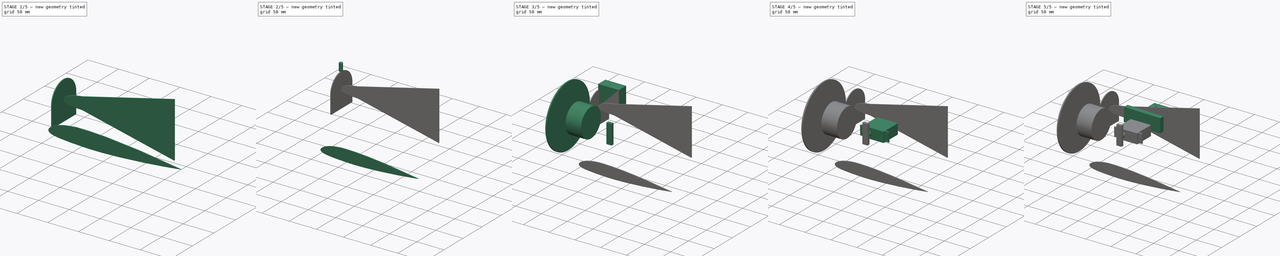
[diagram: build sequence overview — one tinted view per stage of 5, left to right]
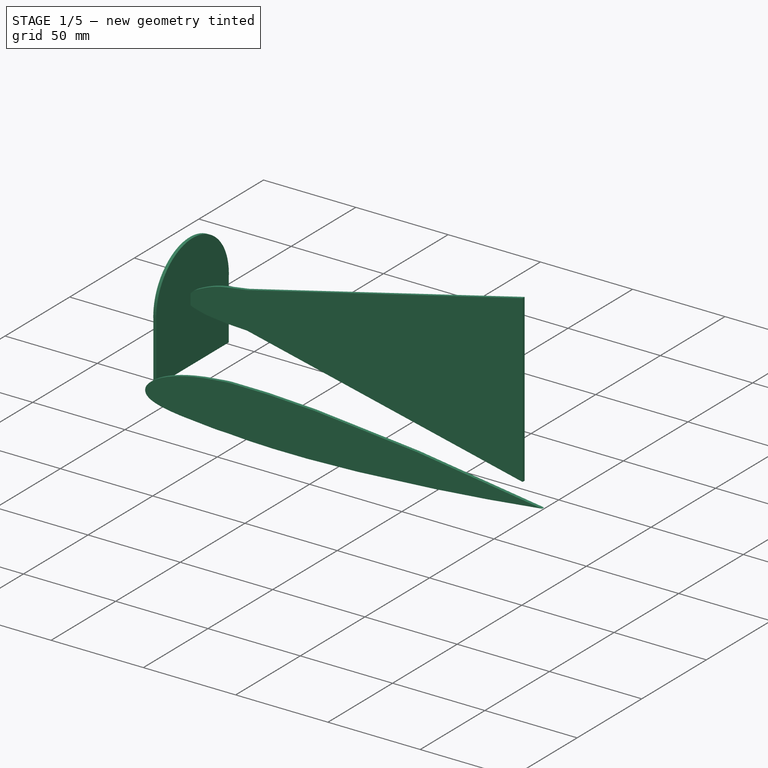
[diagram: stage 1 of 5 — iso view after this stage's code; geometry added in this stage tinted green]
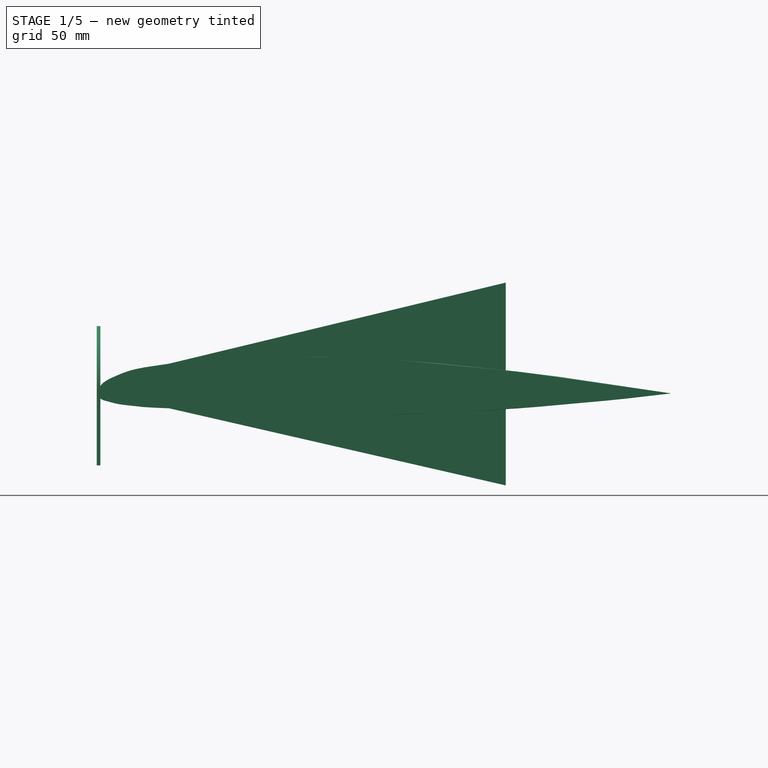
[diagram: stage 1 of 5 — front view after this stage's code; geometry added in this stage tinted green]
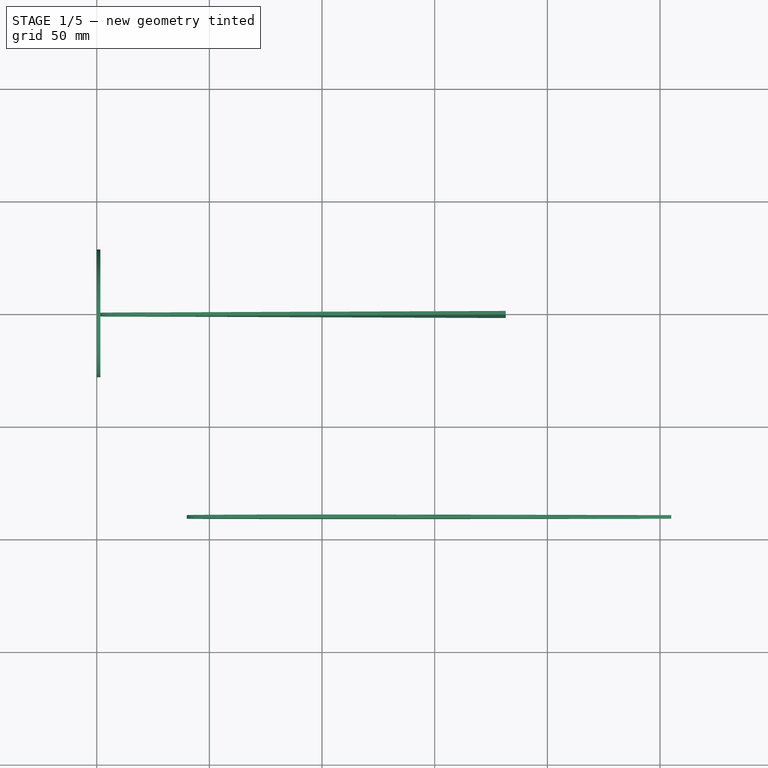
[diagram: stage 1 of 5 — top view after this stage's code; geometry added in this stage tinted green]
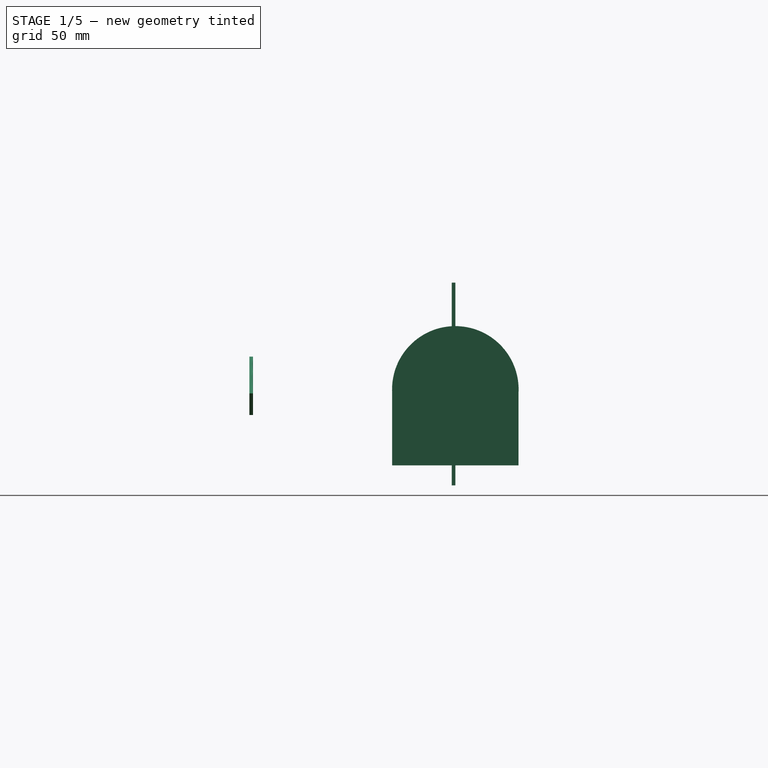
[diagram: stage 1 of 5 — right view after this stage's code; geometry added in this stage tinted green]
FCSTD DOCUMENT  (FreeCAD 0.21R33694 (Git))
Label: builtoutwing
License: All rights reserved
LicenseURL: http://en.wikipedia.org/wiki/All_rights_reserved
objects: Part::Box×7, Part::FeaturePython×6, Part::Cylinder×4, Part::MultiFuse×4, Sketcher::SketchObject×4, PartDesign::Body×4, Part::Fuse×2, PartDesign::Pad×2, Spreadsheet::Sheet×1
note: 35 computed .brp shape members not serialized (recipe doc carries the construction recipe); baked Part::Feature solids carry a one-line shape summary decoded from their .brp

FEATURE [Part::FeaturePython] wrib  # WARN: FeaturePython — macro-defined, semantics opaque (R4)
  Chord = 250
  Coordinates = (101) [(1,0,-1.66492e-17),(0.99901,0,0.000165389),(0.996045,0,0.000659808),(0.991115,0,0.00147806),(0.984241,0,0.00261162),(0.97545,0,0.00404888),+95 more]
  NacaNbrPoint = 50
  NacaProfil = 24112
  RibProfil = 24112
  Thickness = 1.6
  finite_TE = false
  splitSpline = true
  useSpline = true
  wingkey = 0
FEATURE [Part::FeaturePython] wrib001  # WARN: FeaturePython — macro-defined, semantics opaque (R4)
  Chord = 225
  Coordinates = (101) [(1,0,-1.66492e-17),(0.99901,0,0.000165389),(0.996045,0,0.000659808),(0.991115,0,0.00147806),(0.984241,0,0.00261162),(0.97545,0,0.00404888),+95 more]
  NacaNbrPoint = 50
  NacaProfil = 24112
  Placement = pos=(20,-35,0) rot=(1,0,0;0rad)
  RibProfil = 24112
  Thickness = 1.6
  finite_TE = false
  splitSpline = true
  useSpline = true
  wingkey = 0
  expr: .Placement.Base.x = Spreadsheet.wingStepBack
  expr: .Placement.Base.y = wrib.Placement.Base.y - Spreadsheet.wingSpacing * 1 mm
FEATURE [Part::FeaturePython] wrib002  # WARN: FeaturePython — macro-defined, semantics opaque (R4)
  Chord = 215
  Coordinates = (101) [(1,0,-1.66492e-17),(0.99901,0,0.000165389),(0.996045,0,0.000659808),(0.991115,0,0.00147806),(0.984241,0,0.00261162),(0.97545,0,0.00404888),+95 more]
  NacaNbrPoint = 50
  NacaProfil = 24112
  Placement = pos=(40,-91.4,0) rot=(1,0,0;0rad)
  RibProfil = 24112
  Thickness = 1.6
  finite_TE = false
  splitSpline = true
  useSpline = true
  wingkey = 0
  expr: .Placement.Base.x = Spreadsheet.wingStepBack * 2
  expr: .Placement.Base.y = wrib001.Placement.Base.y - 1.2 mm * Spreadsheet.maxServoThickness
FEATURE [Sketcher::SketchObject] Sketch
  FullyConstrained = false
  MapMode = 5
  Placement = pos=(0,0,0) rot=(1,0,0;1.5708rad)
  Support = -> [XZ_Plane]
  sketch-geometry (35):
    g0: LineSegment StartX=181.519 StartY=49.1701 StartZ=0 EndX=181.519 EndY=-40.8299 EndZ=0
    g1: LineSegment StartX=181.519 StartY=49.1701 StartZ=0 EndX=32.1616 EndY=13.2022 EndZ=0
    g2: LineSegment StartX=181.519 StartY=-40.8299 StartZ=0 EndX=32.1616 EndY=-6.62238 EndZ=0
    g3: LineSegment StartX=32.1616 StartY=13.2022 StartZ=0 EndX=32.1616 EndY=-6.62238 EndZ=0
    g4-g19: Circle x16 (B-spline internal-alignment scaffolding for g20; pole/knot coordinates omitted)
    g20: BSplineCurve PolesCount=16 KnotsCount=14 Degree=3 IsPeriodic=0
    g21-g34: GeomPoint x14 (B-spline internal-alignment scaffolding for g20; pole/knot coordinates omitted)
  constraints (17):
    c: Vertical(g0)
    c: DistanceY(g0,g0) = 90
    c: Coincident(g1,g0)
    c: Coincident(g2,g0)
    c: Coincident(g3,g1)
    c: Coincident(g3,g2)
    c: Vertical(g3)
    c: Angle(g0,g2) = 1.34565
    c: Angle(g1,g0) = 1.33448
    c: Weight(g4) = 1
    c: Coincident(g20,g1)
    c: Equal(g4, g5-g10) x6
    c: Coincident(g10,g-1)
    c: Equal(g4, g11-g19) x9
    c: Coincident(g20,g2)
    c: InternalAlignment(g4-g19 -> g20) x16
    c: InternalAlignment(g21-g34 -> g20) x14
FEATURE [Spreadsheet::Sheet] Spreadsheet
  cells = A1='wingStepBack; B1(wingStepBack)=20; A2='maxServoThickness; B2(maxServoThickness)=47; A3='wingSpacing; B3(wingSpacing)=35; B4==70 / 4
FEATURE [PartDesign::Pad] Pad
  Direction = (0,-1,2e-16)
  Length = 1.6
  Length2 = 10
  Placement = pos=(0,0,0) rot=(1,0,0;1.5708rad)
  Profile = -> Sketch
  ReferenceAxis = -> Sketch [N_Axis]
  Type = 0
FEATURE [PartDesign::Body] Body  label="wingtip"
  Group = -> [Sketch,Pad]
  Origin = -> Origin
  Placement = pos=(100,-198,0) rot=(0,0,1;0rad)
  Tip = -> Pad
  expr: .Placement.Base.x = wrib005.Placement.Base.x
  expr: .Placement.Base.y = wrib005.Placement.Base.y - wrib005.Thickness
FEATURE [Sketcher::SketchObject] Sketch001
  FullyConstrained = false
  MapMode = 5
  Placement = pos=(0,0,0) rot=(0.57735,0.57735,0.57735;2.0944rad)
  Support = -> [YZ_Plane001]
  sketch-geometry (5):
    g0: LineSegment StartX=28.0369 StartY=-31.9392 StartZ=0 EndX=-28.0275 EndY=-31.9392 EndZ=0
    g1: GeomPoint X=28.0369 Y=0.154968 Z=0
    g2: LineSegment StartX=-28.0275 StartY=6.31e-14 StartZ=0 EndX=-28.0275 EndY=-31.9392 EndZ=0
    g3: LineSegment StartX=28.0369 StartY=0.154968 StartZ=0 EndX=28.0369 EndY=-31.9392 EndZ=0
    g4: ArcOfCircle CenterX=0 CenterY=1.77516 CenterZ=0 NormalX=0 NormalY=0 NormalZ=1 AngleXU=0 Radius=28.0837 StartAngle=6.22546 EndAngle=9.48803
  constraints (10):
    c: Horizontal(g0)
    c: PointOnObject(g2,g-1)
    c: Coincident(g2,g0)
    c: Vertical(g2)
    c: Coincident(g3,g1)
    c: Coincident(g3,g0)
    c: Vertical(g3)
    c: PointOnObject(g4,g-2)
    c: Coincident(g4,g2)
    c: Coincident(g4,g3)
FEATURE [PartDesign::Pad] Pad001
  Direction = (1,-2e-16,3e-16)
  Length = 1.6
  Length2 = 10
  Placement = pos=(0,0,0) rot=(1,1,1;2.0944rad)
  Profile = -> Sketch001
  ReferenceAxis = -> Sketch001 [N_Axis]
  Type = 0
FEATURE [PartDesign::Body] Body001  label="motor suppprt up"
  Group = -> [Sketch001,Pad001]
  Origin = -> Origin001
  Placement = pos=(80.7,-134.7,43.3) rot=(0,0,1;0rad)
  Tip = -> Pad001
FEATURE [Sketcher::SketchObject] Sketch002
  FullyConstrained = false
  MapMode = 5
  Placement = pos=(0,0,0) rot=(1,0,0;1.5708rad)
  Support = -> [XZ_Plane002]
  sketch-geometry (4):
    g0: LineSegment StartX=83.1645 StartY=12.579 StartZ=0 EndX=83.1645 EndY=48.2086 EndZ=0
    g1: LineSegment StartX=83.1645 StartY=48.2086 StartZ=0 EndX=83.1645 EndY=12.579 EndZ=0
    g2: LineSegment StartX=83.1645 StartY=12.579 StartZ=0 EndX=184.931 EndY=10.3329 EndZ=0
    g3: LineSegment StartX=184.931 StartY=10.3329 StartZ=0 EndX=83.1645 EndY=48.2086 EndZ=0
  constraints (6):
    c: Vertical(g0)
    c: Coincident(g1,g0)
    c: Coincident(g2,g3)
    c: Coincident(g0,g1)
    c: Coincident(g0,g2)
    c: Coincident(g0,g3)
FEATURE [PartDesign::Body] Body002  label="Body"
  Group = -> [Sketch002]
  Origin = -> Origin002
  Placement = pos=(0,-125,0) rot=(0,0,1;0rad)
FEATURE [Sketcher::SketchObject] Sketch003
  FullyConstrained = false
  MapMode = 5
  Placement = pos=(0,0,0) rot=(1,0,0;1.5708rad)
  Support = -> [XZ_Plane003]
  sketch-geometry (29):
    g0: LineSegment StartX=83.9824 StartY=48.0338 StartZ=0 EndX=83.9824 EndY=11.8671 EndZ=0
    g1: LineSegment StartX=183.735 StartY=11.8671 StartZ=0 EndX=83.9824 EndY=48.0338 EndZ=0
    g2: LineSegment StartX=83.9824 StartY=11.8671 StartZ=0 EndX=100.826 EndY=11.8671 EndZ=0
    g3-g15: Circle x13 (B-spline internal-alignment scaffolding for g16; pole/knot coordinates omitted)
    g16: BSplineCurve PolesCount=13 KnotsCount=11 Degree=3 IsPeriodic=0
    g17-g27: GeomPoint x11 (B-spline internal-alignment scaffolding for g16; pole/knot coordinates omitted)
    g28: LineSegment StartX=177.945 StartY=11.8671 StartZ=0 EndX=183.735 EndY=11.8671 EndZ=0
  constraints (12):
    c: Coincident(g1,g0)
    c: Vertical(g0)
    c: Coincident(g2,g0)
    c: Coincident(g28,g1)
    c: Horizontal(g2)
    c: Weight(g3) = 1
    c: PointOnObject(g16,g2)
    c: Equal(g3, g4-g15) x12
    c: InternalAlignment(g3-g15 -> g16) x13
    c: InternalAlignment(g17-g27 -> g16) x11
    c: Coincident(g2,g16)
    c: PointOnObject(g28,g16)
FEATURE [PartDesign::Body] Body003
  Group = -> [Sketch003]
  Origin = -> Origin003
  Placement = pos=(0,-162.2,0) rot=(0,0,1;0rad)
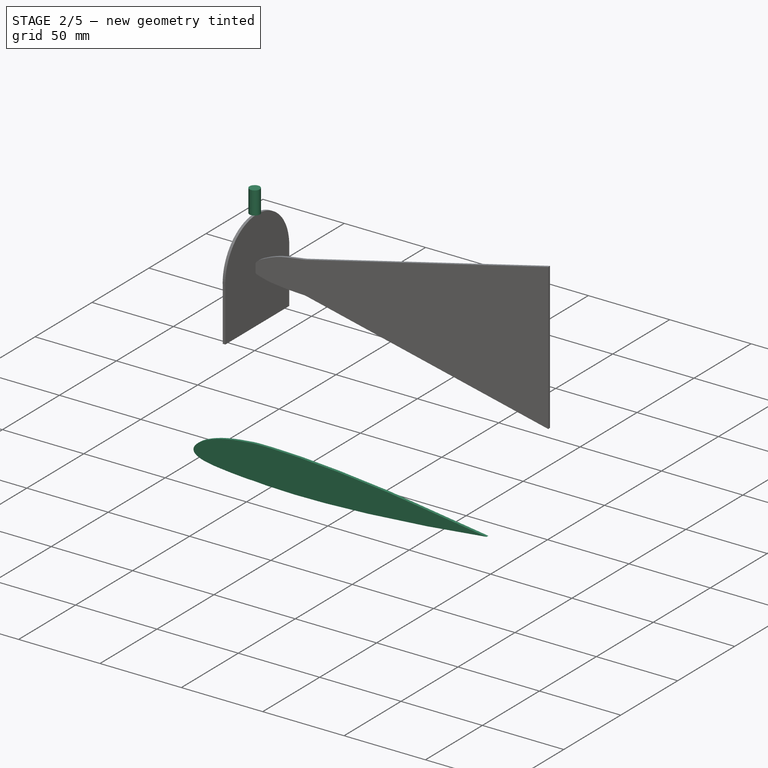
[diagram: stage 2 of 5 — iso view after this stage's code; geometry added in this stage tinted green]
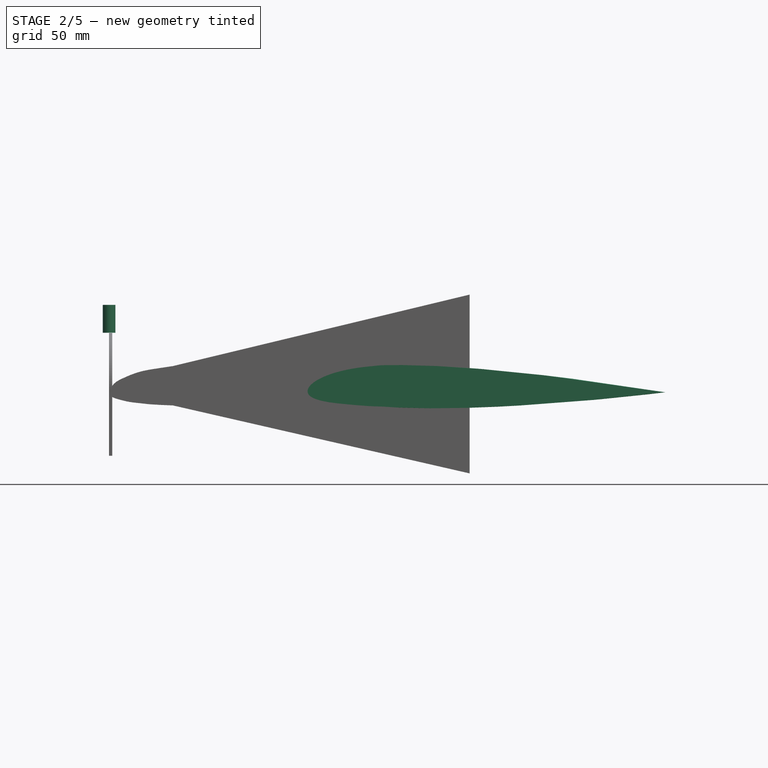
[diagram: stage 2 of 5 — front view after this stage's code; geometry added in this stage tinted green]
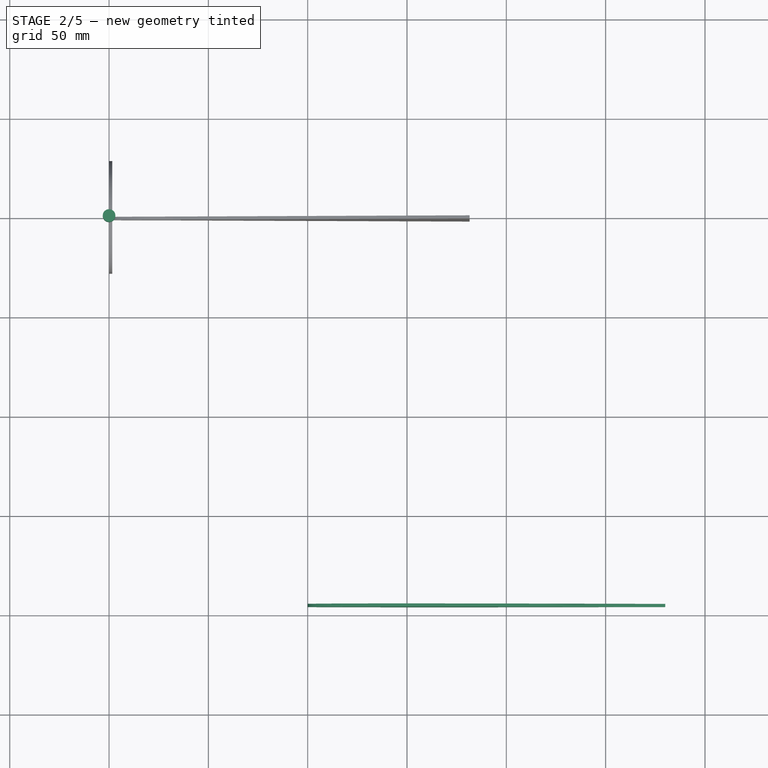
[diagram: stage 2 of 5 — top view after this stage's code; geometry added in this stage tinted green]
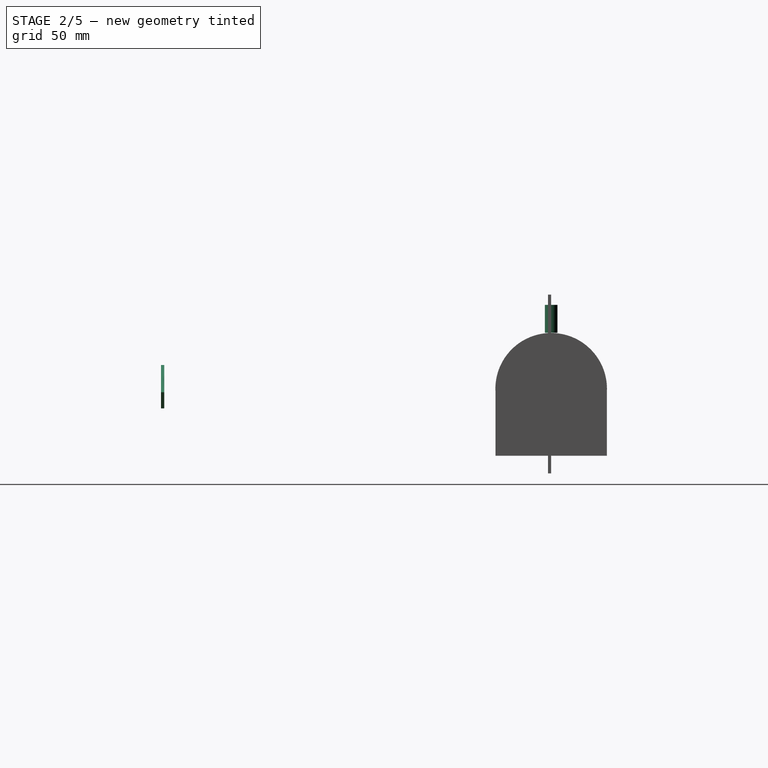
[diagram: stage 2 of 5 — right view after this stage's code; geometry added in this stage tinted green]
FEATURE [Part::Cylinder] Cylinder  label="Motor"
  Angle = 360
  AttacherType = Attacher::AttachEngine3D
  FirstAngle = 0
  Height = 30
  Radius = 27.7
  SecondAngle = 0
FEATURE [Part::Cylinder] Cylinder001  label="Cylinder"
  Angle = 360
  AttacherType = Attacher::AttachEngine3D
  FirstAngle = 0
  Height = 14
  MapMode = 5
  Placement = pos=(0,0,30) rot=(0,0,1;0rad)
  Radius = 3.175
  SecondAngle = 0
  Support = -> [Cylinder]
FEATURE [Part::FeaturePython] wrib003  # WARN: FeaturePython — macro-defined, semantics opaque (R4)
  Chord = 200
  Coordinates = (101) [(1,0,-1.66492e-17),(0.99901,0,0.000165389),(0.996045,0,0.000659808),(0.991115,0,0.00147806),(0.984241,0,0.00261162),(0.97545,0,0.00404888),+95 more]
  NacaNbrPoint = 50
  NacaProfil = 24112
  Placement = pos=(60,-126.4,0) rot=(1,0,0;0rad)
  RibProfil = 24112
  Thickness = 1.6
  finite_TE = false
  splitSpline = true
  useSpline = true
  wingkey = 0
  expr: .Placement.Base.x = Spreadsheet.wingStepBack * 3
  expr: .Placement.Base.y = wrib002.Placement.Base.y - Spreadsheet.wingSpacing * 1 mm
FEATURE [Part::FeaturePython] wrib004  # WARN: FeaturePython — macro-defined, semantics opaque (R4)
  Chord = 190
  Coordinates = (101) [(1,0,-1.66492e-17),(0.99901,0,0.000165389),(0.996045,0,0.000659808),(0.991115,0,0.00147806),(0.984241,0,0.00261162),(0.97545,0,0.00404888),+95 more]
  NacaNbrPoint = 50
  NacaProfil = 24112
  Placement = pos=(80,-161.4,0) rot=(1,0,0;0rad)
  RibProfil = 24112
  Thickness = 1.6
  finite_TE = false
  splitSpline = true
  useSpline = true
  wingkey = 0
  expr: .Placement.Base.x = Spreadsheet.wingStepBack * 4
  expr: .Placement.Base.y = wrib003.Placement.Base.y - 1 mm * Spreadsheet.wingSpacing
FEATURE [Part::FeaturePython] wrib005  # WARN: FeaturePython — macro-defined, semantics opaque (R4)
  Chord = 180
  Coordinates = (101) [(1,0,-1.66492e-17),(0.99901,0,0.000165389),(0.996045,0,0.000659808),(0.991115,0,0.00147806),(0.984241,0,0.00261162),(0.97545,0,0.00404888),+95 more]
  NacaNbrPoint = 50
  NacaProfil = 24112
  Placement = pos=(100,-196.4,0) rot=(1,0,0;0rad)
  RibProfil = 24112
  Thickness = 1.6
  finite_TE = false
  splitSpline = true
  useSpline = true
  wingkey = 0
  expr: .Placement.Base.x = Spreadsheet.wingStepBack * 5
  expr: .Placement.Base.y = wrib004.Placement.Base.y - 1 mm * Spreadsheet.wingSpacing
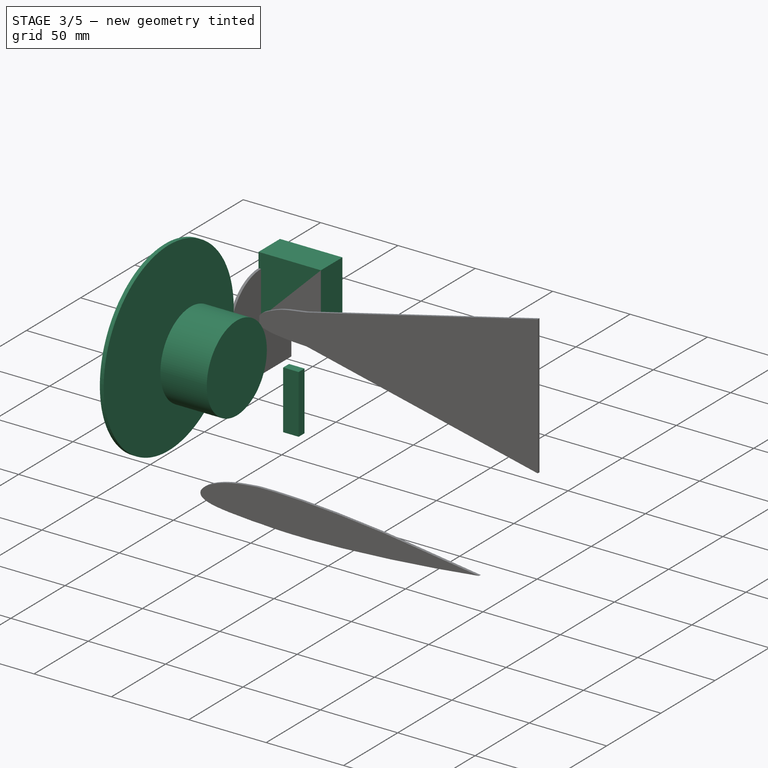
[diagram: stage 3 of 5 — iso view after this stage's code; geometry added in this stage tinted green]
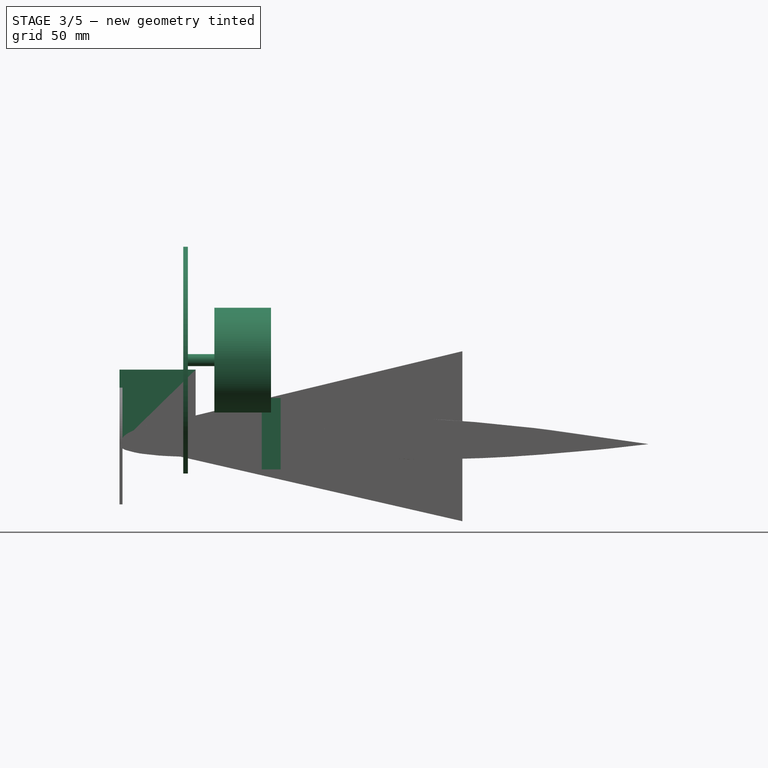
[diagram: stage 3 of 5 — front view after this stage's code; geometry added in this stage tinted green]
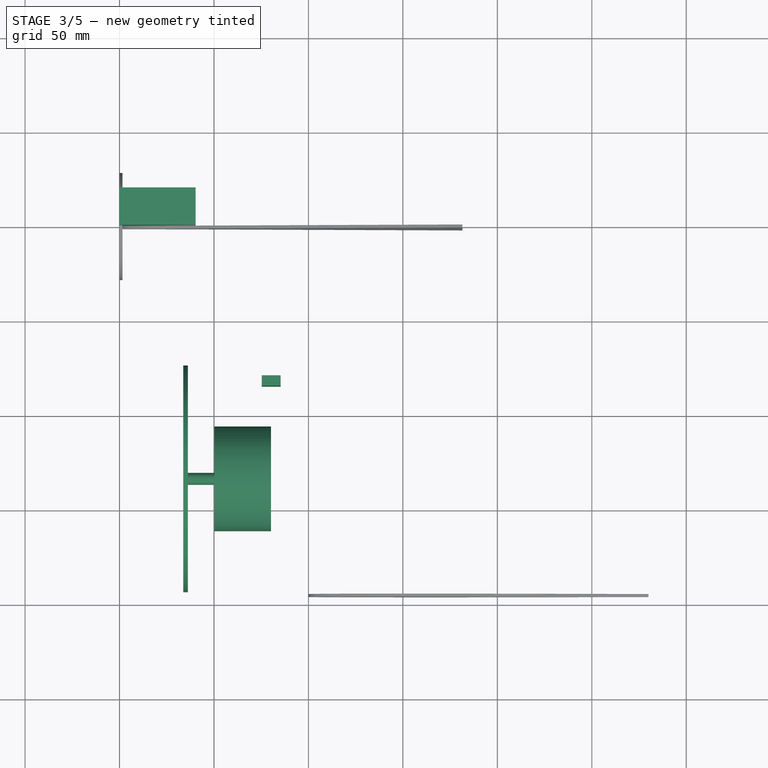
[diagram: stage 3 of 5 — top view after this stage's code; geometry added in this stage tinted green]
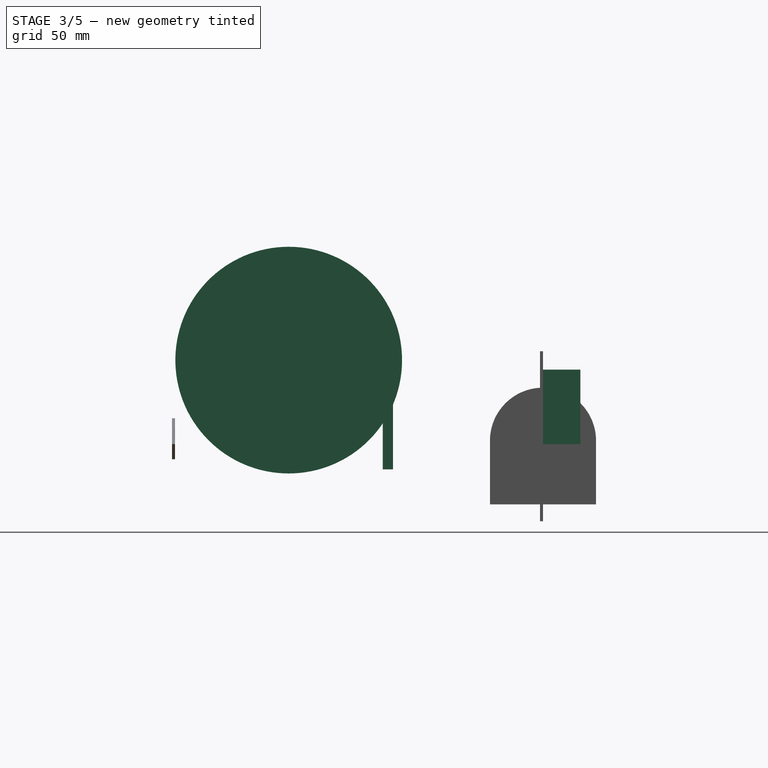
[diagram: stage 3 of 5 — right view after this stage's code; geometry added in this stage tinted green]
FEATURE [Part::Fuse] Fusion001  label="motor"
  Base = -> Cylinder
  Placement = pos=(88.4126,-158.1,45.5491) rot=(0,-1,0;1.5708rad)
  Tool = -> Cylinder001
FEATURE [Part::Box] Box003  label="Cube002"
  AttacherType = Attacher::AttachEngine3D
  Height = 39.4
  Length = 40.3
  Width = 19.8
FEATURE [Part::Box] Box006  label="Cube005"
  AttacherType = Attacher::AttachEngine3D
  Height = 5.4
  Length = 10
  Placement = pos=(75.3,-79.4,-13.4) rot=(1,0,0;1.5708rad)
  Width = 37.8
FEATURE [Part::Cylinder] Cylinder003
  Angle = 360
  AttacherType = Attacher::AttachEngine3D
  FirstAngle = 0
  Height = 2.5
  MapMode = 5
  Placement = pos=(44.4126,-158.1,45.5491) rot=(0,-1,0;1.5708rad)
  Radius = 60
  SecondAngle = 0
  Support = -> [Fusion001]
FEATURE [Part::MultiFuse] Fusion005  label="motor with prop"
  Placement = pos=(-8.2,23.5,-1.1) rot=(0,0,1;0rad)
  Shapes = -> [Cylinder003,Fusion001]
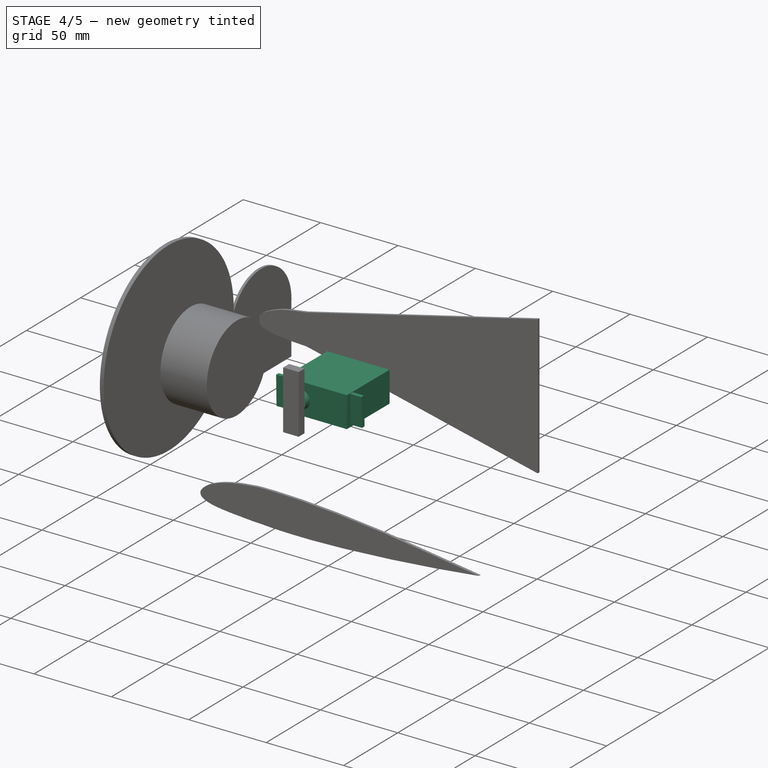
[diagram: stage 4 of 5 — iso view after this stage's code; geometry added in this stage tinted green]
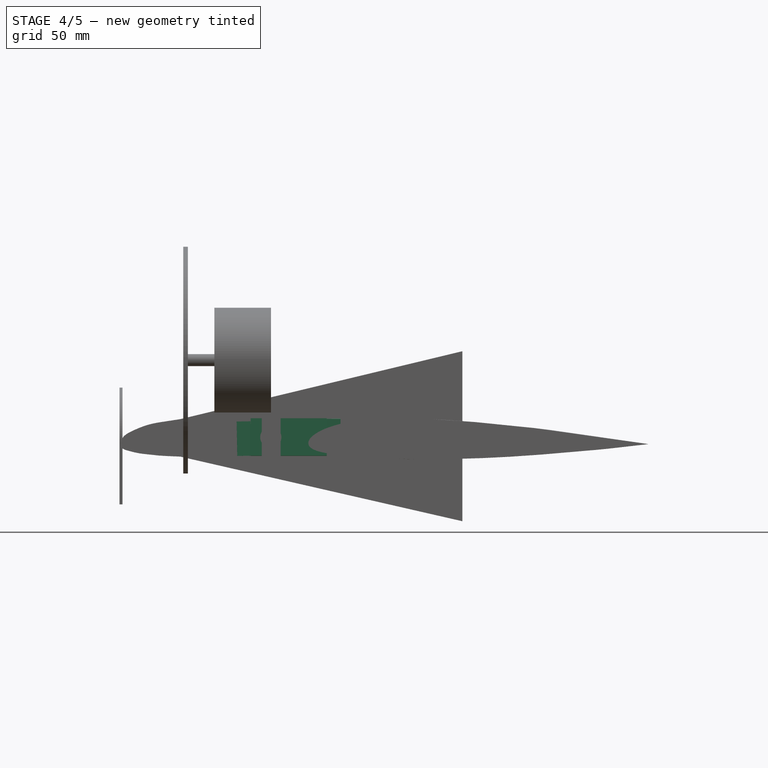
[diagram: stage 4 of 5 — front view after this stage's code; geometry added in this stage tinted green]
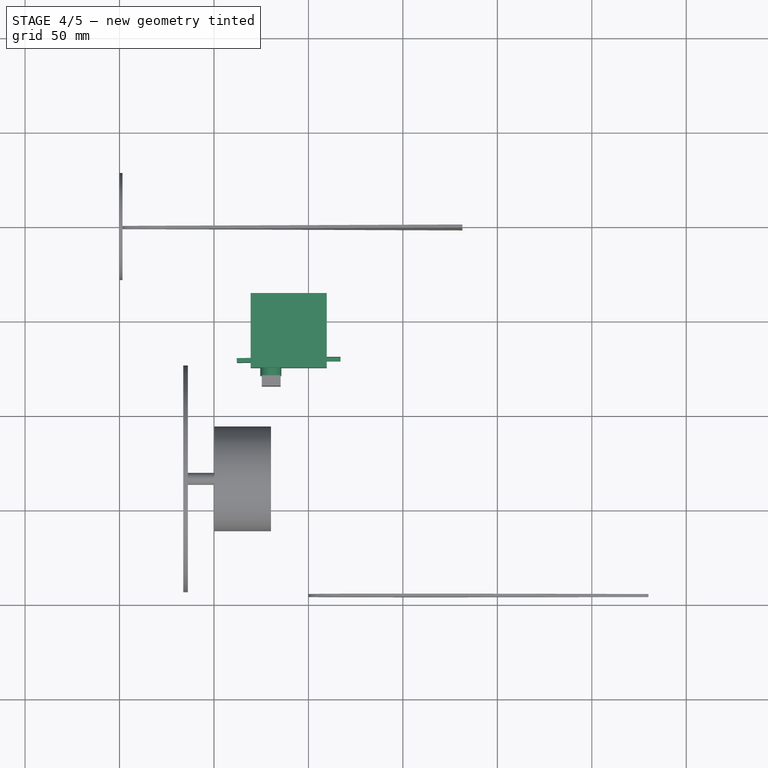
[diagram: stage 4 of 5 — top view after this stage's code; geometry added in this stage tinted green]
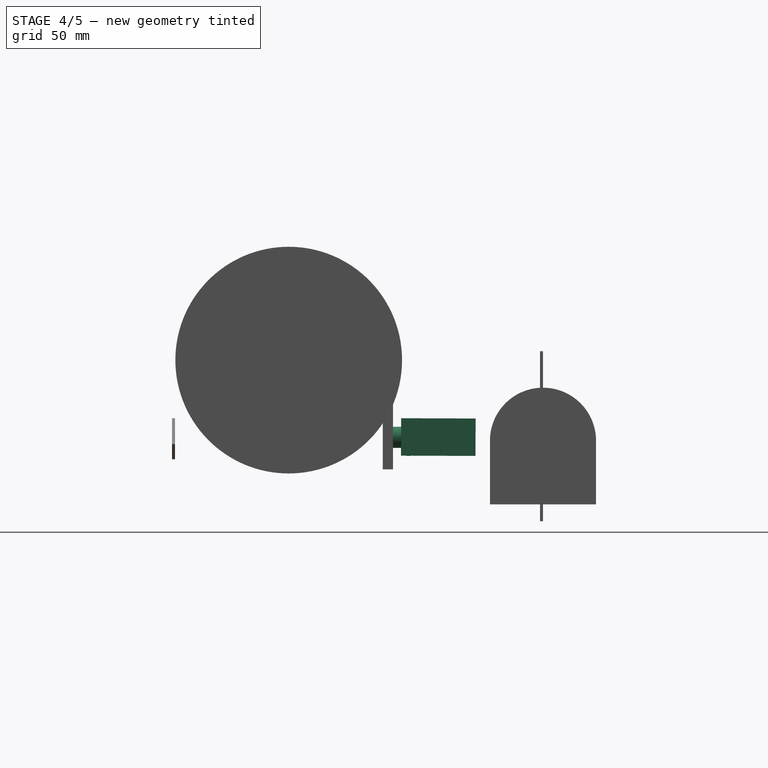
[diagram: stage 4 of 5 — right view after this stage's code; geometry added in this stage tinted green]
FEATURE [Part::Cylinder] Cylinder002
  Angle = 360
  AttacherType = Attacher::AttachEngine3D
  FirstAngle = 0
  Height = 4.4
  MapMode = 5
  Placement = pos=(0,0,39.4) rot=(0,0,1;0rad)
  Radius = 5.6
  SecondAngle = 0
  Support = -> [Box003]
FEATURE [Part::Box] Box004  label="Cube003"
  AttacherType = Attacher::AttachEngine3D
  Height = 2.3
  Length = 7.3
  MapMode = 5
  Placement = pos=(0,0,0) rot=(0.57735,-0.57735,-0.57735;2.0944rad)
  Support = -> [Box003]
  Width = 18.2
FEATURE [Part::Box] Box005  label="Cube004"
  AttacherType = Attacher::AttachEngine3D
  Height = 2.3
  Length = 7.3
  MapMode = 5
  Placement = pos=(40.3,0,0) rot=(0.57735,0.57735,0.57735;2.0944rad)
  Support = -> [Box003]
  Width = 18.2
FEATURE [Part::MultiFuse] Fusion002
  Shapes = -> [Box003,Cylinder002]
FEATURE [Part::MultiFuse] Fusion003  label="servo"
  Placement = pos=(69.3919,-35.7367,-6.25479) rot=(1,-6.4e-05,-0.000128;1.56715rad)
  Shapes = -> [Fusion002,Box005,Box004]
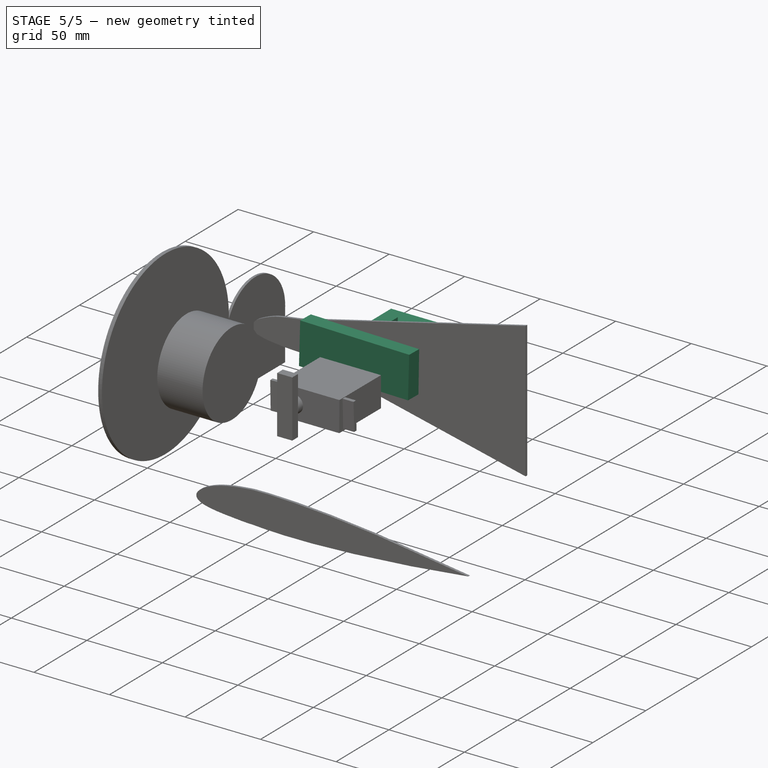
[diagram: stage 5 of 5 — iso view after this stage's code; geometry added in this stage tinted green]
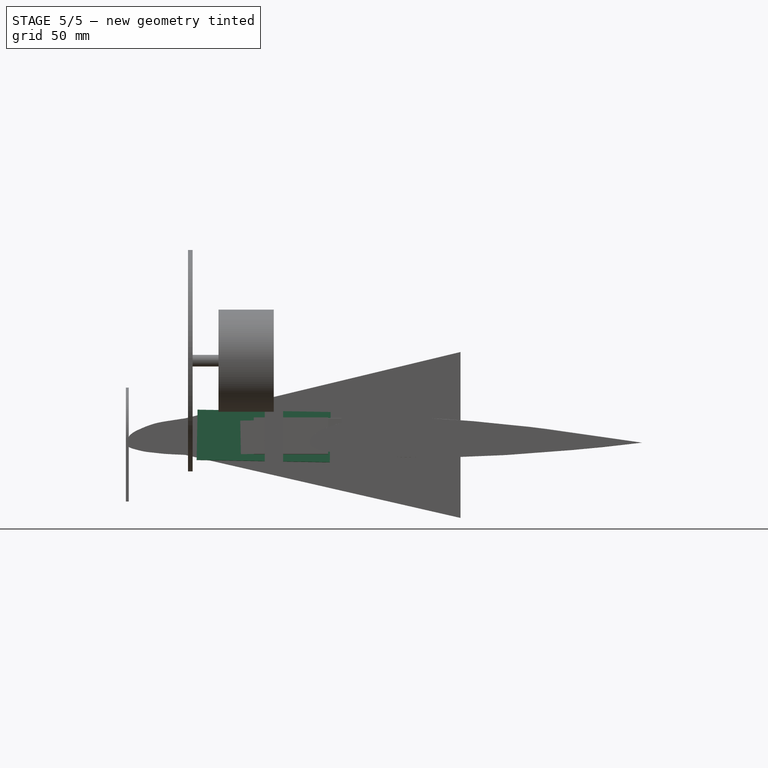
[diagram: stage 5 of 5 — front view after this stage's code; geometry added in this stage tinted green]
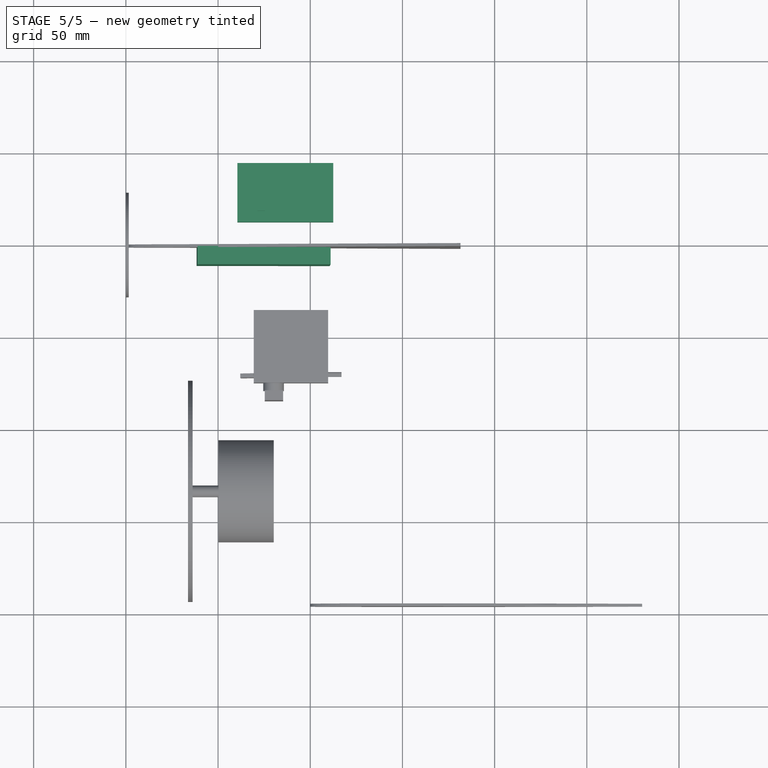
[diagram: stage 5 of 5 — top view after this stage's code; geometry added in this stage tinted green]
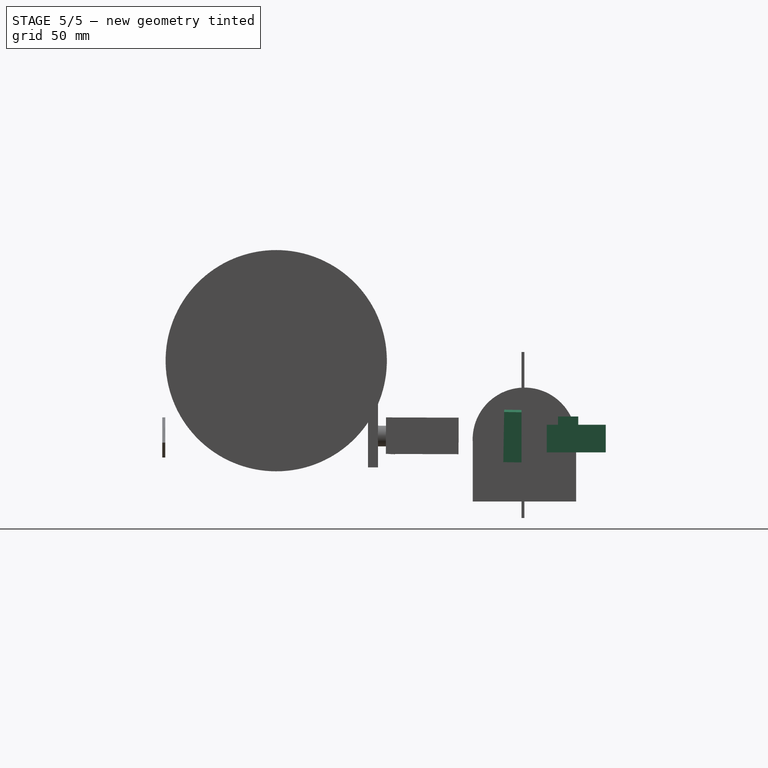
[diagram: stage 5 of 5 — right view after this stage's code; geometry added in this stage tinted green]
FEATURE [Part::Box] Box  label="Cube"
  AttacherType = Attacher::AttachEngine3D
  Height = 15
  Length = 52
  Width = 32
FEATURE [Part::Box] Box001  label="Cube001"
  AttacherType = Attacher::AttachEngine3D
  Height = 4.5
  Length = 4
  MapMode = 5
  Placement = pos=(0,0,15) rot=(0,0,1;0rad)
  Support = -> [Box]
  Width = 11
FEATURE [Part::Fuse] Fusion  label="flight controller"
  Base = -> Box
  Placement = pos=(60.5,12.1,-5.3) rot=(0,0,1;0rad)
  Tool = -> Box001
FEATURE [Part::Box] Box002  label="ESC"
  AttacherType = Attacher::AttachEngine3D
  Height = 10
  Length = 72.2
  Placement = pos=(38.4003,-1.4373,-9.47319) rot=(0.999922,0.008726,-0.00888;1.55342rad)
  Width = 27.2
FEATURE [Part::MultiFuse] Fusion004  label="servo001"
  Shapes = -> [Fusion003,Box006]
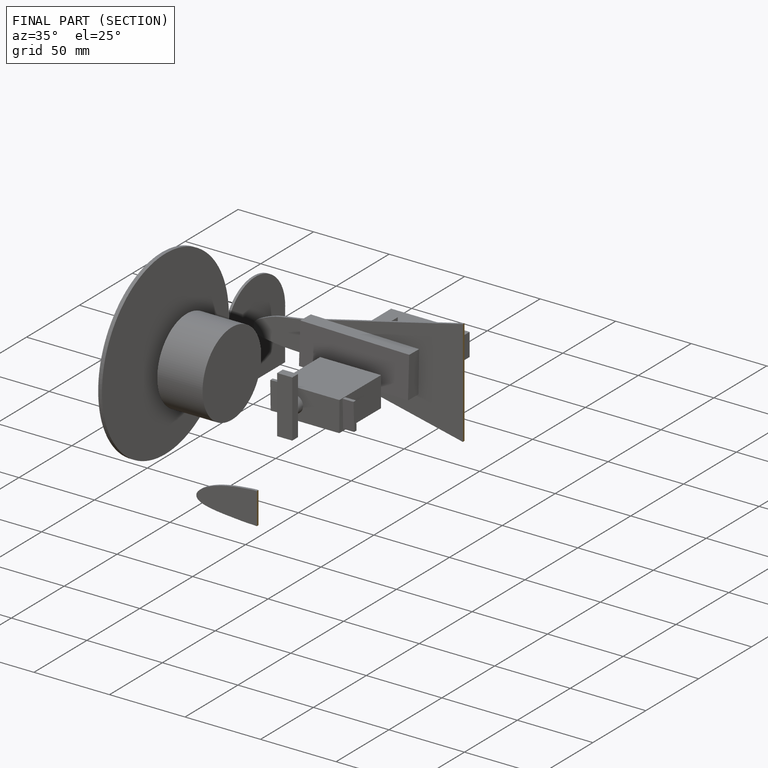
[diagram: finished part — half-section view (interior)]
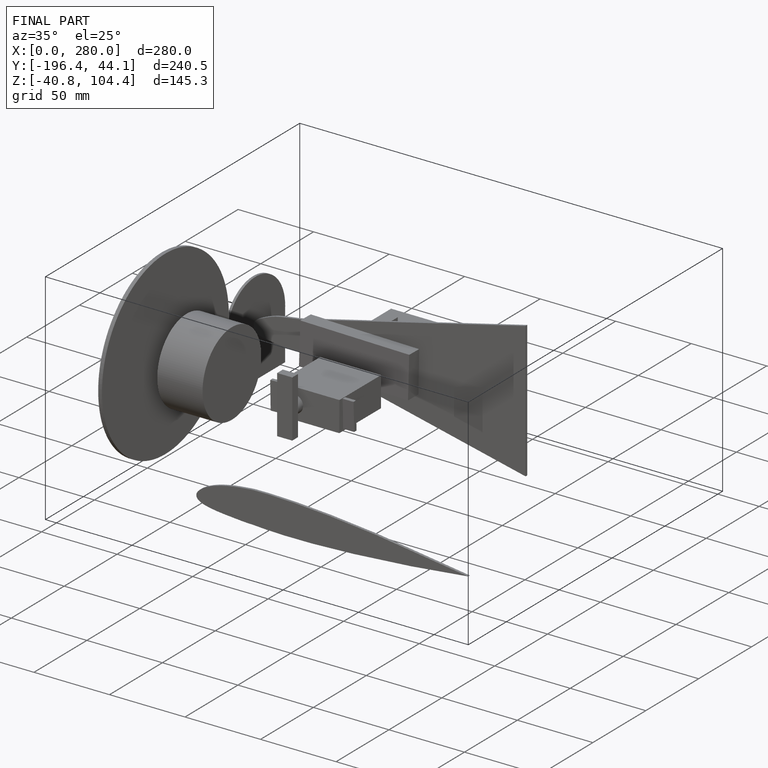
[diagram: finished part — iso view with bounding-box wireframe]
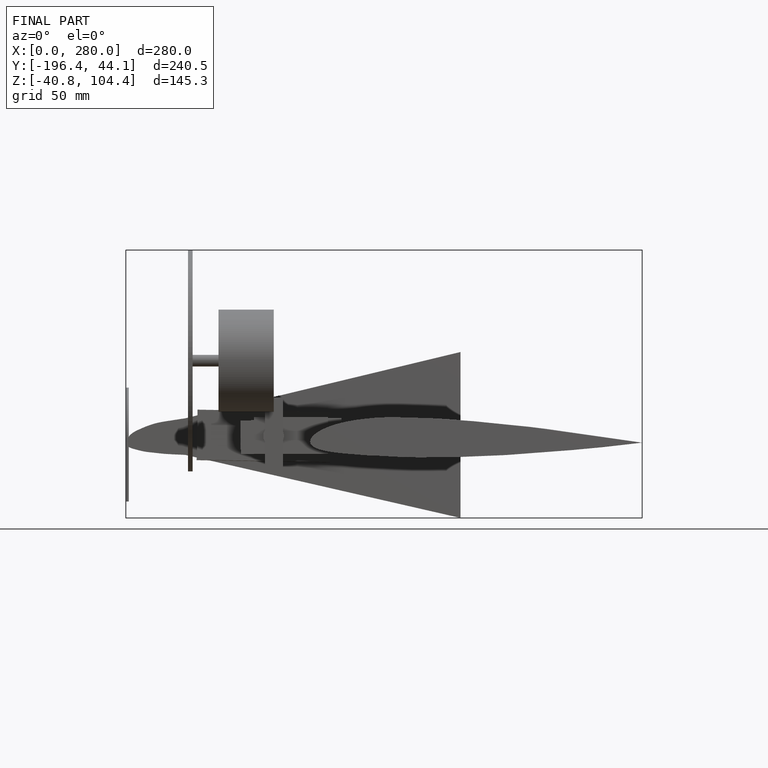
[diagram: finished part — front view with bounding-box wireframe]
